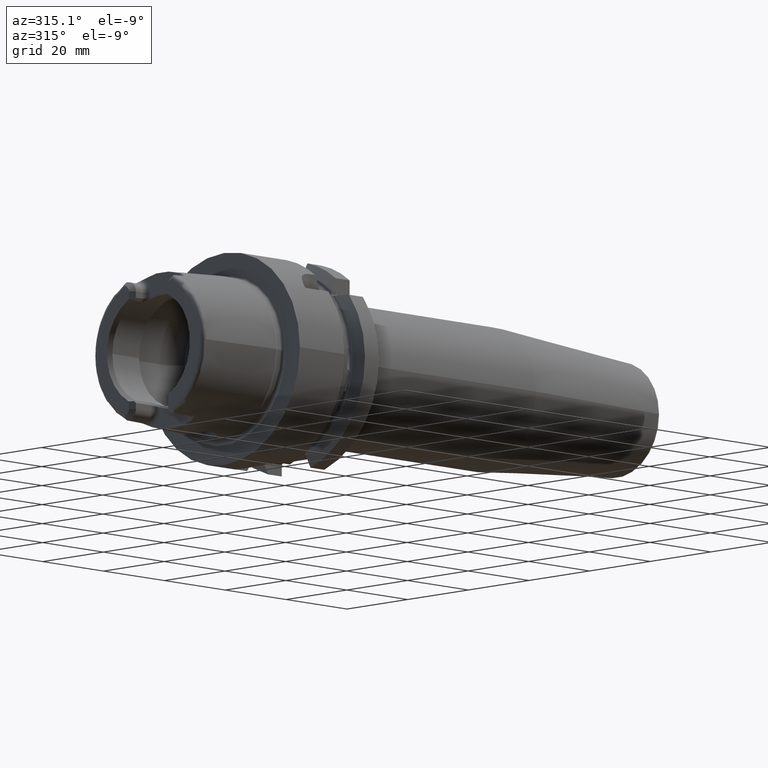
[diagram: clean part render]
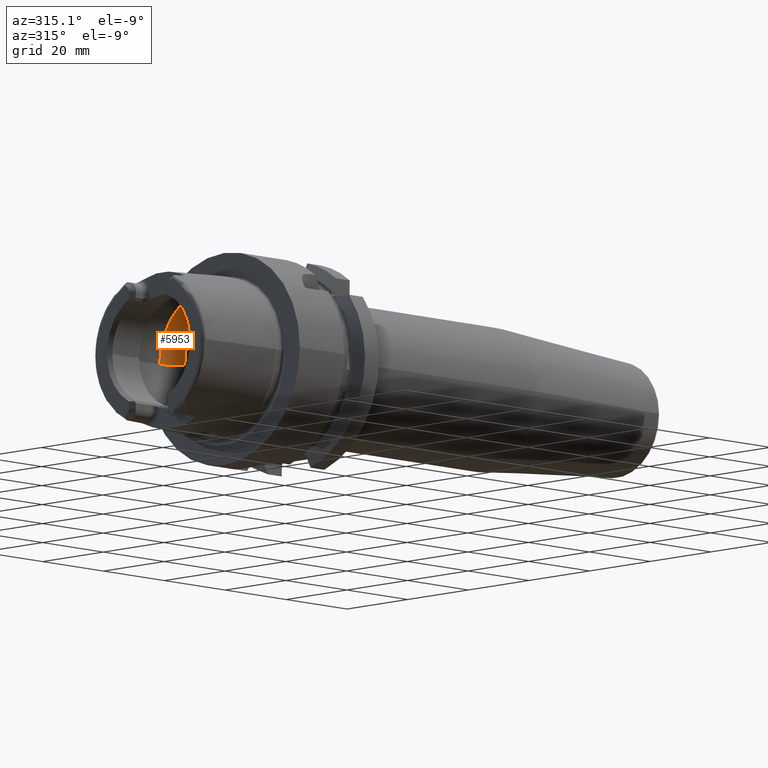
[diagram: same view with one face highlighted and labeled with its STEP entity id]
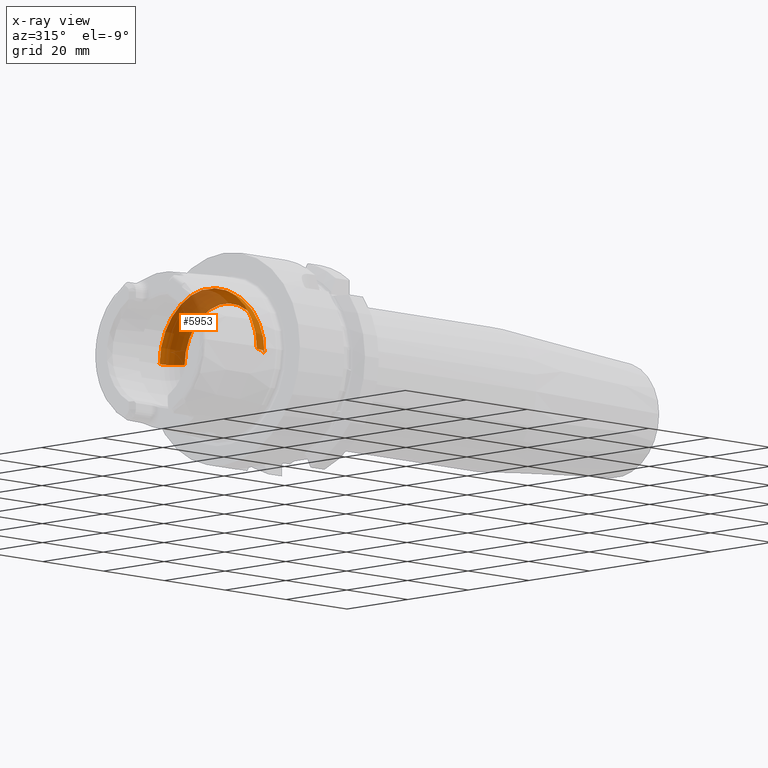
[diagram: x-ray of the same camera — body ghosted, the highlighted face saturated]
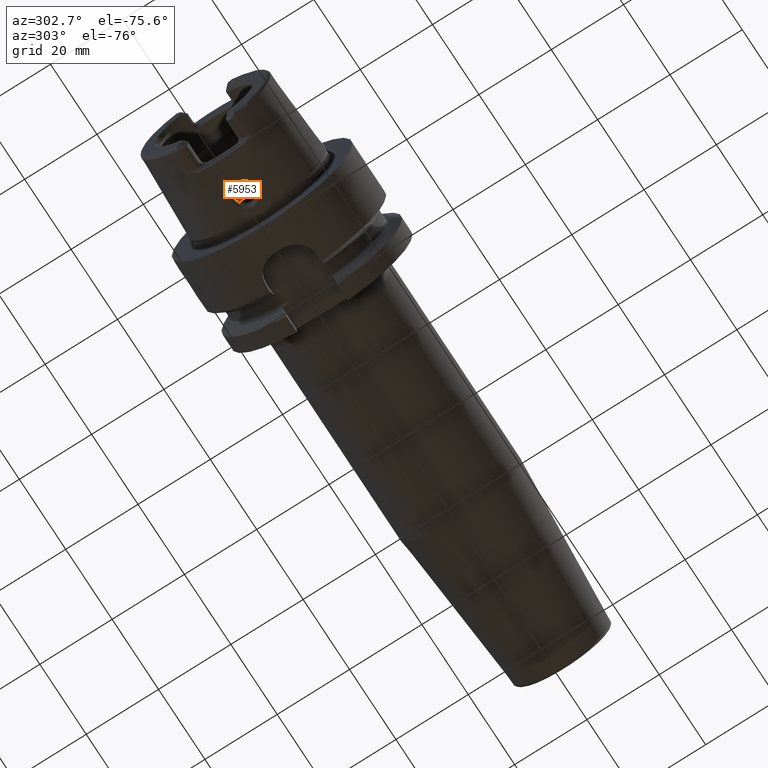
[diagram: same view with one face highlighted and labeled with its STEP entity id]
A machine part, auxiliary view. The second image highlights one B-rep face of the part: STEP entity #5953.
The next image is the same camera in x-ray: the body ghosted, the highlighted face saturated — about 34% of this face is hidden behind the body in this view.
A second angle (auxiliary view) of the same face is appended — the face is thin or edge-on in the first view.
In plain terms, the highlighted toroidal blend (fillet) surface has major radius 10.04 mm and minor (blend) radius 6 mm.
Its self-contained STEP definition (entity closure, byte-faithful):
#2189=CARTESIAN_POINT('',(-4.5E0,0.E0,1.599819131363E1));
#2190=CARTESIAN_POINT('',(-4.5E0,1.393933285662E-1,1.599819131363E1));
#2191=CARTESIAN_POINT('',(-4.519404191081E0,4.194544956419E-1,
1.599688659151E1));
#2192=CARTESIAN_POINT('',(-4.608514252748E0,8.368427430076E-1,
1.599033330284E1));
#2193=CARTESIAN_POINT('',(-4.756111350291E0,1.237284710770E0,1.597758887261E1));
#2194=CARTESIAN_POINT('',(-4.955426617124E0,1.607186531253E0,1.595666056940E1));
#2195=CARTESIAN_POINT('',(-5.118862175482E0,1.829998924173E0,1.593561410958E1));
#2196=CARTESIAN_POINT('',(-5.207075858867E0,1.934553923521E0,1.592291120106E1));
#2198=CARTESIAN_POINT('',(-5.207075858867E0,-1.934553923521E0,
1.592291120106E1));
#2199=CARTESIAN_POINT('',(-5.118900024865E0,-1.830043785039E0,
1.593560865920E1));
#2200=CARTESIAN_POINT('',(-4.955463769315E0,-1.607278697505E0,
1.595665773659E1));
#2201=CARTESIAN_POINT('',(-4.755897029316E0,-1.236851245102E0,
1.597761021240E1));
#2202=CARTESIAN_POINT('',(-4.608377605542E0,-8.363601809663E-1,
1.599034363703E1));
#2203=CARTESIAN_POINT('',(-4.519347393058E0,-4.189919635640E-1,
1.599689053867E1));
#2204=CARTESIAN_POINT('',(-4.5E0,-1.392080742489E-1,1.599819131363E1));
#2205=CARTESIAN_POINT('',(-4.5E0,0.E0,1.599819131363E1));
#2207=CARTESIAN_POINT('',(0.E0,0.E0,0.E0));
#2208=DIRECTION('',(1.E0,0.E0,0.E0));
#2209=DIRECTION('',(0.E0,1.E0,0.E0));
#2210=AXIS2_PLACEMENT_3D('',#2207,#2208,#2209);
#2231=CARTESIAN_POINT('',(-5.207075858867E0,0.E0,0.E0));
#2232=DIRECTION('',(1.E0,0.E0,0.E0));
#2233=DIRECTION('',(0.E0,1.E0,0.E0));
#2234=AXIS2_PLACEMENT_3D('',#2231,#2232,#2233);
#2236=CARTESIAN_POINT('',(-5.207075858867E0,0.E0,0.E0));
#2237=DIRECTION('',(1.E0,0.E0,0.E0));
#2238=DIRECTION('',(0.E0,-1.206080999702E-1,9.927001995676E-1));
#2239=AXIS2_PLACEMENT_3D('',#2236,#2237,#2238);
#2325=CARTESIAN_POINT('',(-5.207075858867E0,1.004E1,0.E0));
#2326=DIRECTION('',(0.E0,0.E0,1.E0));
#2327=DIRECTION('',(8.678459764779E-1,4.968333333333E-1,0.E0));
#2328=AXIS2_PLACEMENT_3D('',#2325,#2326,#2327);
#2335=CARTESIAN_POINT('',(-5.207075858867E0,-1.004E1,0.E0));
#2336=DIRECTION('',(0.E0,0.E0,-1.E0));
#2337=DIRECTION('',(8.678459764779E-1,-4.968333333333E-1,0.E0));
#2338=AXIS2_PLACEMENT_3D('',#2335,#2336,#2337);
#3133=CARTESIAN_POINT('',(-4.5E0,0.E0,1.599819131363E1));
#3134=VERTEX_POINT('',#3133);
#3155=CARTESIAN_POINT('',(0.E0,1.3021E1,0.E0));
#3156=VERTEX_POINT('',#3155);
#3157=CARTESIAN_POINT('',(-5.207075858867E0,1.604E1,0.E0));
#3158=VERTEX_POINT('',#3157);
#3167=CARTESIAN_POINT('',(0.E0,-1.3021E1,0.E0));
#3168=VERTEX_POINT('',#3167);
#3169=CARTESIAN_POINT('',(-5.207075858867E0,-1.604E1,0.E0));
#3170=VERTEX_POINT('',#3169);
#3187=VERTEX_POINT('',#2196);
#3188=VERTEX_POINT('',#2198);
#5934=CARTESIAN_POINT('',(-5.207075858867E0,0.E0,0.E0));
#5935=DIRECTION('',(1.E0,0.E0,0.E0));
#5936=DIRECTION('',(0.E0,-1.E0,0.E0));
#5937=AXIS2_PLACEMENT_3D('',#5934,#5935,#5936);
#5938=TOROIDAL_SURFACE('',#5937,1.004E1,6.E0);
#5939=ORIENTED_EDGE('',*,*,#5911,.F.);
#5940=ORIENTED_EDGE('',*,*,#5685,.F.);
#5942=ORIENTED_EDGE('',*,*,#5941,.T.);
#5944=ORIENTED_EDGE('',*,*,#5943,.F.);
#5946=ORIENTED_EDGE('',*,*,#5945,.F.);
#5948=ORIENTED_EDGE('',*,*,#5947,.T.);
#5950=ORIENTED_EDGE('',*,*,#5949,.T.);
#5951=EDGE_LOOP('',(#5939,#5940,#5942,#5944,#5946,#5948,#5950));
#5952=FACE_OUTER_BOUND('',#5951,.F.);
#5953=ADVANCED_FACE('',(#5952),#5938,.F.);
#2197=B_SPLINE_CURVE_WITH_KNOTS('',3,(#2189,#2190,#2191,#2192,#2193,#2194,#2195,
#2196),.UNSPECIFIED.,.F.,.F.,(4,1,1,1,1,4),(0.E0,2.E-1,4.E-1,6.E-1,8.E-1,1.E0),
.UNSPECIFIED.);
#2206=B_SPLINE_CURVE_WITH_KNOTS('',3,(#2198,#2199,#2200,#2201,#2202,#2203,#2204,
#2205),.UNSPECIFIED.,.F.,.F.,(4,1,1,1,1,4),(0.E0,2.E-1,4.E-1,6.E-1,8.E-1,1.E0),
.UNSPECIFIED.);
#2211=CIRCLE('',#2210,1.3021E1);
#2235=CIRCLE('',#2234,1.604E1);
#2240=CIRCLE('',#2239,1.604E1);
#2329=CIRCLE('',#2328,6.E0);
#2339=CIRCLE('',#2338,6.E0);
#5685=EDGE_CURVE('',#3188,#3134,#2206,.T.);
#5911=EDGE_CURVE('',#3134,#3187,#2197,.T.);
#5941=EDGE_CURVE('',#3188,#3170,#2240,.T.);
#5943=EDGE_CURVE('',#3168,#3170,#2339,.T.);
#5945=EDGE_CURVE('',#3156,#3168,#2211,.T.);
#5947=EDGE_CURVE('',#3156,#3158,#2329,.T.);
#5949=EDGE_CURVE('',#3158,#3187,#2235,.T.);